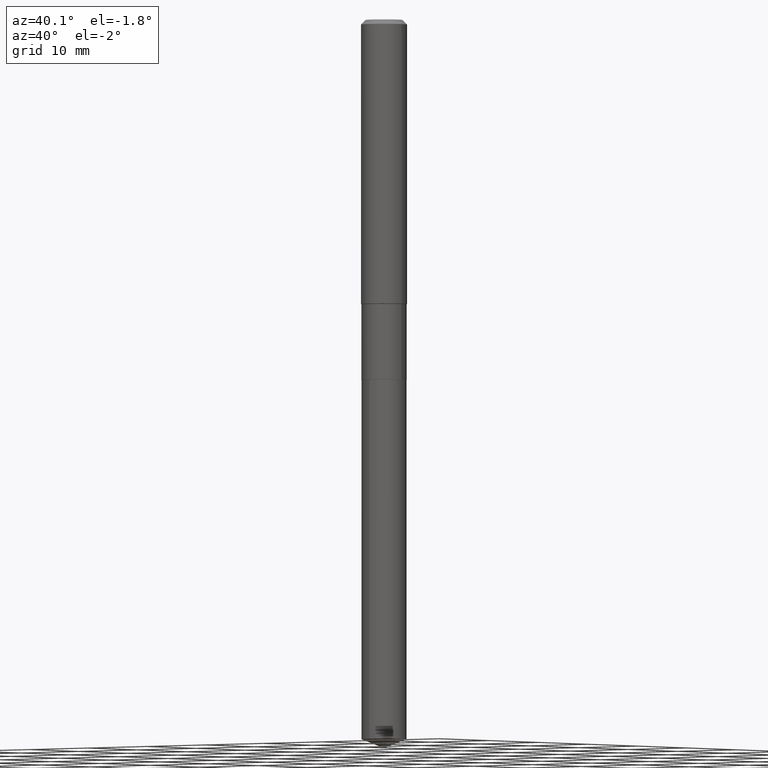
[diagram: clean part render]
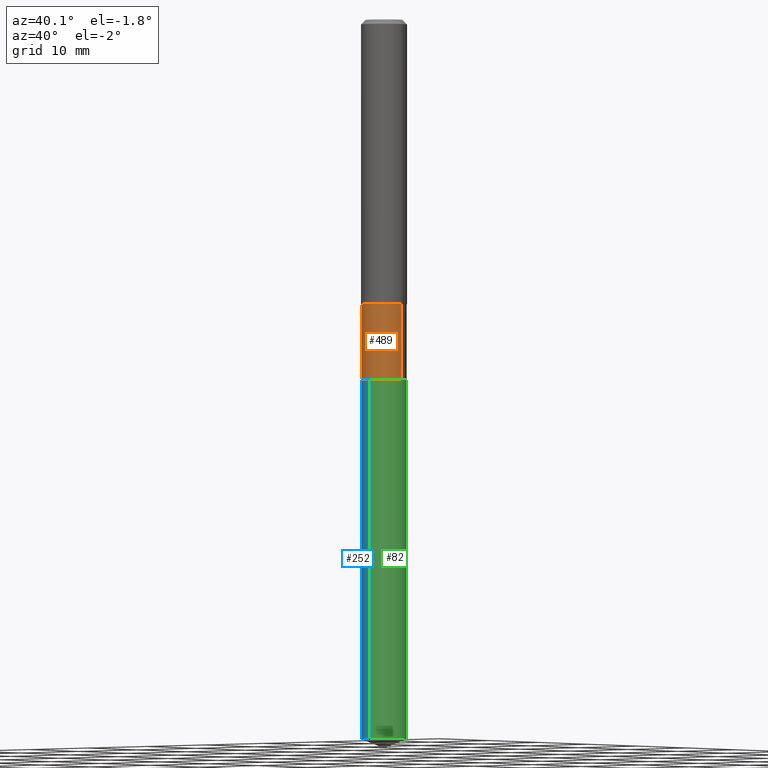
[diagram: same view with three faces highlighted in distinct colors, each labeled with its STEP entity id]
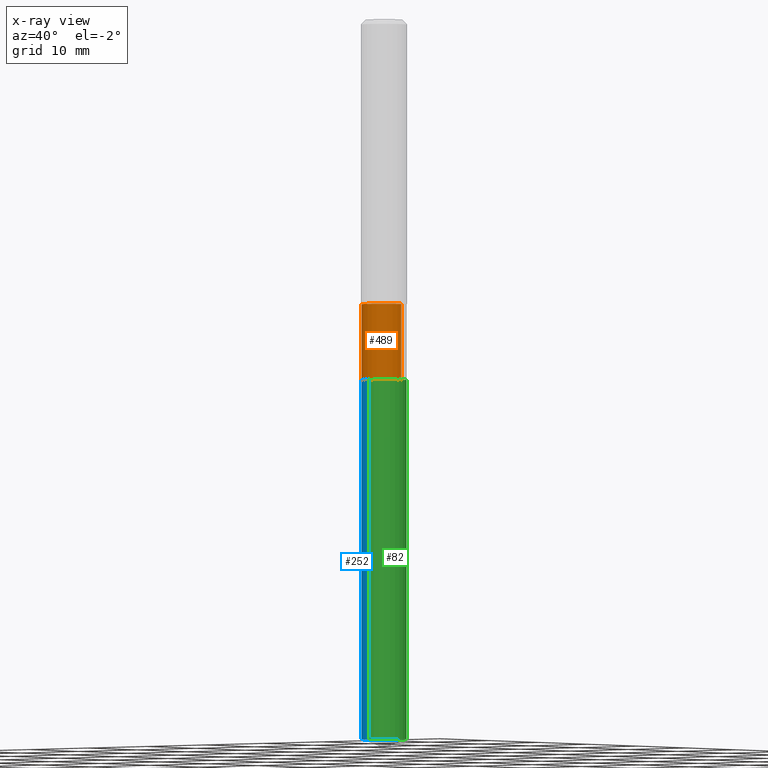
[diagram: x-ray of the same camera — body ghosted, the three highlighted faces saturated]
A machine part, auxiliary view with three faces highlighted in distinct colors.
The next image is the same camera in x-ray (body ghosted, the three faces saturated) — at least one of them is partly hidden behind the body in this view.
Their STEP definitions:

[orange] entity #489 — the highlighted cylindrical surface (edge-blend (fillet) strip) has radius 2.9502 mm, axis along (-0, 0, 1).
#7 = FACE_OUTER_BOUND ( 'NONE', #212, .T. ) ;
#25 = VERTEX_POINT ( 'NONE', #44 ) ;
#44 = CARTESIAN_POINT ( 'NONE',  ( -0.1161499999999999477, -4.955201117003356773E-15, -1.461300000000000043 ) ) ;
#59 = VERTEX_POINT ( 'NONE', #160 ) ;
#78 = CIRCLE ( 'NONE', #371, 0.1161499999999999477 ) ;
#86 = CARTESIAN_POINT ( 'NONE',  ( -0.1161499999999999755, 8.252953875853561917E-16, -5.713343107331072131E-30 ) ) ;
#97 = ORIENTED_EDGE ( 'NONE', *, *, #350, .T. ) ;
#102 = AXIS2_PLACEMENT_3D ( 'NONE', #134, #419, #127 ) ;
#108 = ORIENTED_EDGE ( 'NONE', *, *, #145, .F. ) ;
#127 = DIRECTION ( 'NONE',  ( 1.000000000000000000, -6.982962677686265922E-15, 0.000000000000000000 ) ) ;
#134 = CARTESIAN_POINT ( 'NONE',  ( 4.523872744561885153E-29, -6.458891328725936072E-15, -1.849900000000000322 ) ) ;
#135 = LINE ( 'NONE', #86, #206 ) ;
#136 = DIRECTION ( 'NONE',  ( -2.445468806185136597E-29, 3.491481338843145583E-15, 1.000000000000000000 ) ) ;
#145 = EDGE_CURVE ( 'NONE', #366, #25, #135, .T. ) ;
#160 = CARTESIAN_POINT ( 'NONE',  ( 0.1161499999999999477, -5.913172795464748024E-15, -1.461300000000000043 ) ) ;
#171 = LINE ( 'NONE', #400, #358 ) ;
#187 = VERTEX_POINT ( 'NONE', #411 ) ;
#206 = VECTOR ( 'NONE', #233, 39.37007874015748143 ) ;
#208 = CARTESIAN_POINT ( 'NONE',  ( 3.573563566478340670E-29, -5.102101680451488278E-15, -1.461300000000000043 ) ) ;
#212 = EDGE_LOOP ( 'NONE', ( #108, #237, #97, #322 ) ) ;
#233 = DIRECTION ( 'NONE',  ( -2.445468806185136877E-29, 3.491481338843145188E-15, 1.000000000000000000 ) ) ;
#237 = ORIENTED_EDGE ( 'NONE', *, *, #446, .T. ) ;
#240 = DIRECTION ( 'NONE',  ( 1.000000000000000000, -6.982962677686269866E-15, 0.000000000000000000 ) ) ;
#307 = CIRCLE ( 'NONE', #102, 0.1161500000000000032 ) ;
#322 = ORIENTED_EDGE ( 'NONE', *, *, #341, .F. ) ;
#341 = EDGE_CURVE ( 'NONE', #25, #59, #78, .T. ) ;
#350 = EDGE_CURVE ( 'NONE', #187, #59, #171, .T. ) ;
#351 = DIRECTION ( 'NONE',  ( -2.445468806185136877E-29, 3.491481338843145188E-15, 1.000000000000000000 ) ) ;
#355 = DIRECTION ( 'NONE',  ( 1.000000000000000000, -6.982962677686266711E-15, 4.876176775795935232E-29 ) ) ;
#358 = VECTOR ( 'NONE', #351, 39.37007874015748143 ) ;
#363 = CARTESIAN_POINT ( 'NONE',  ( -0.1161500000000000032, -4.955201117003356773E-15, -1.849900000000000322 ) ) ;
#366 = VERTEX_POINT ( 'NONE', #363 ) ;
#371 = AXIS2_PLACEMENT_3D ( 'NONE', #208, #136, #240 ) ;
#394 = CARTESIAN_POINT ( 'NONE',  ( 0.000000000000000000, 0.000000000000000000, 0.000000000000000000 ) ) ;
#396 = DIRECTION ( 'NONE',  ( -2.445468806185136597E-29, 3.491481338843145583E-15, 1.000000000000000000 ) ) ;
#400 = CARTESIAN_POINT ( 'NONE',  ( 0.1161499999999999755, -8.110711150132597459E-16, 5.663679325086977697E-30 ) ) ;
#411 = CARTESIAN_POINT ( 'NONE',  ( 0.1161500000000000032, -7.269962443739196607E-15, -1.849900000000000322 ) ) ;
#419 = DIRECTION ( 'NONE',  ( -2.445468806185136597E-29, 3.491481338843145583E-15, 1.000000000000000000 ) ) ;
#423 = AXIS2_PLACEMENT_3D ( 'NONE', #394, #396, #355 ) ;
#446 = EDGE_CURVE ( 'NONE', #366, #187, #307, .T. ) ;
#463 = CYLINDRICAL_SURFACE ( 'NONE', #423, 0.1161499999999999755 ) ;
#489 = ADVANCED_FACE ( 'NONE', ( #7 ), #463, .T. ) ;

[blue] entity #252 — the highlighted cylindrical surface (edge-blend (fillet) strip) has radius 2.9502 mm, axis along (-0, 0, 1).
#19 = VECTOR ( 'NONE', #109, 39.37007874015748143 ) ;
#27 = VERTEX_POINT ( 'NONE', #165 ) ;
#55 = EDGE_CURVE ( 'NONE', #177, #317, #138, .T. ) ;
#63 = ORIENTED_EDGE ( 'NONE', *, *, #430, .T. ) ;
#75 = FACE_OUTER_BOUND ( 'NONE', #401, .T. ) ;
#100 = CARTESIAN_POINT ( 'NONE',  ( 8.252953875854015512E-16, 0.1161499999999935501, -1.850400000000000489 ) ) ;
#109 = DIRECTION ( 'NONE',  ( -2.445480539169630025E-29, 3.491464536541551464E-15, 1.000000000000000000 ) ) ;
#132 = AXIS2_PLACEMENT_3D ( 'NONE', #293, #340, #156 ) ;
#138 = LINE ( 'NONE', #407, #19 ) ;
#156 = DIRECTION ( 'NONE',  ( -6.982962677686265922E-15, -1.000000000000000000, 2.351999994545211393E-15 ) ) ;
#165 = CARTESIAN_POINT ( 'NONE',  ( 8.252953875854468121E-16, 0.1161499999999935362, -1.850400000000000489 ) ) ;
#166 = CARTESIAN_POINT ( 'NONE',  ( 9.034677260161599698E-29, -1.289906281496606921E-14, -3.694447298257325318 ) ) ;
#177 = VERTEX_POINT ( 'NONE', #194 ) ;
#194 = CARTESIAN_POINT ( 'NONE',  ( -8.110711150131693227E-16, -0.1161500000000128818, -3.694447298257324874 ) ) ;
#200 = DIRECTION ( 'NONE',  ( -2.445480539169630025E-29, 3.491464536541551464E-15, 1.000000000000000000 ) ) ;
#252 = ADVANCED_FACE ( 'NONE', ( #75 ), #262, .T. ) ;
#254 = DIRECTION ( 'NONE',  ( -2.445480539169629745E-29, 3.491464536541551464E-15, 1.000000000000000000 ) ) ;
#262 = CYLINDRICAL_SURFACE ( 'NONE', #132, 0.1161500000000000032 ) ;
#270 = CARTESIAN_POINT ( 'NONE',  ( 8.252953875854466149E-16, 0.1161499999999871108, -3.694447298257326207 ) ) ;
#293 = CARTESIAN_POINT ( 'NONE',  ( 4.525095478964977394E-29, -6.460637069395357576E-15, -1.850400000000000267 ) ) ;
#299 = CARTESIAN_POINT ( 'NONE',  ( -8.110711150132145836E-16, -0.1161500000000064564, -1.850400000000000045 ) ) ;
#308 = EDGE_CURVE ( 'NONE', #27, #317, #406, .T. ) ;
#309 = DIRECTION ( 'NONE',  ( -2.445480539169629745E-29, 3.491464536541551464E-15, 1.000000000000000000 ) ) ;
#316 = AXIS2_PLACEMENT_3D ( 'NONE', #333, #254, #481 ) ;
#317 = VERTEX_POINT ( 'NONE', #299 ) ;
#328 = ORIENTED_EDGE ( 'NONE', *, *, #372, .F. ) ;
#333 = CARTESIAN_POINT ( 'NONE',  ( 4.525095478964977394E-29, -6.460637069395357576E-15, -1.850400000000000267 ) ) ;
#340 = DIRECTION ( 'NONE',  ( -2.445480539169629745E-29, 3.491464536541551464E-15, 1.000000000000000000 ) ) ;
#367 = ORIENTED_EDGE ( 'NONE', *, *, #308, .F. ) ;
#372 = EDGE_CURVE ( 'NONE', #380, #27, #422, .T. ) ;
#380 = VERTEX_POINT ( 'NONE', #270 ) ;
#401 = EDGE_LOOP ( 'NONE', ( #328, #63, #440, #367 ) ) ;
#406 = CIRCLE ( 'NONE', #316, 0.1161500000000000032 ) ;
#407 = CARTESIAN_POINT ( 'NONE',  ( -8.110711150132145836E-16, -0.1161500000000064564, -1.850400000000000045 ) ) ;
#414 = VECTOR ( 'NONE', #200, 39.37007874015748143 ) ;
#422 = LINE ( 'NONE', #100, #414 ) ;
#430 = EDGE_CURVE ( 'NONE', #380, #177, #458, .T. ) ;
#440 = ORIENTED_EDGE ( 'NONE', *, *, #55, .T. ) ;
#443 = AXIS2_PLACEMENT_3D ( 'NONE', #166, #309, #461 ) ;
#458 = CIRCLE ( 'NONE', #443, 0.1161500000000000032 ) ;
#461 = DIRECTION ( 'NONE',  ( -6.982962677686265922E-15, -1.000000000000000000, 4.703999989090422785E-15 ) ) ;
#481 = DIRECTION ( 'NONE',  ( -6.982962677686265922E-15, -1.000000000000000000, 2.351999994545211393E-15 ) ) ;

[green] entity #82 — the highlighted cylindrical surface (edge-blend (fillet) strip) has radius 2.9502 mm, axis along (-0, 0, 1).
#4 = DIRECTION ( 'NONE',  ( -2.445480539169629745E-29, 3.491464536541551464E-15, 1.000000000000000000 ) ) ;
#19 = VECTOR ( 'NONE', #109, 39.37007874015748143 ) ;
#27 = VERTEX_POINT ( 'NONE', #165 ) ;
#35 = EDGE_LOOP ( 'NONE', ( #260, #53, #445, #183 ) ) ;
#38 = DIRECTION ( 'NONE',  ( -6.982962677686265922E-15, -1.000000000000000000, 4.703999989090422785E-15 ) ) ;
#47 = AXIS2_PLACEMENT_3D ( 'NONE', #343, #130, #91 ) ;
#53 = ORIENTED_EDGE ( 'NONE', *, *, #372, .T. ) ;
#55 = EDGE_CURVE ( 'NONE', #177, #317, #138, .T. ) ;
#82 = ADVANCED_FACE ( 'NONE', ( #163 ), #310, .T. ) ;
#91 = DIRECTION ( 'NONE',  ( -6.982962677686265922E-15, -1.000000000000000000, 2.351999994545211393E-15 ) ) ;
#100 = CARTESIAN_POINT ( 'NONE',  ( 8.252953875854015512E-16, 0.1161499999999935501, -1.850400000000000489 ) ) ;
#109 = DIRECTION ( 'NONE',  ( -2.445480539169630025E-29, 3.491464536541551464E-15, 1.000000000000000000 ) ) ;
#118 = CARTESIAN_POINT ( 'NONE',  ( 4.525095478964977394E-29, -6.460637069395357576E-15, -1.850400000000000267 ) ) ;
#125 = DIRECTION ( 'NONE',  ( -2.445480539169629745E-29, 3.491464536541551464E-15, 1.000000000000000000 ) ) ;
#130 = DIRECTION ( 'NONE',  ( -2.445480539169629745E-29, 3.491464536541551464E-15, 1.000000000000000000 ) ) ;
#138 = LINE ( 'NONE', #407, #19 ) ;
#153 = CIRCLE ( 'NONE', #219, 0.1161500000000000032 ) ;
#163 = FACE_OUTER_BOUND ( 'NONE', #35, .T. ) ;
#165 = CARTESIAN_POINT ( 'NONE',  ( 8.252953875854468121E-16, 0.1161499999999935362, -1.850400000000000489 ) ) ;
#177 = VERTEX_POINT ( 'NONE', #194 ) ;
#183 = ORIENTED_EDGE ( 'NONE', *, *, #55, .F. ) ;
#192 = DIRECTION ( 'NONE',  ( -6.982962677686265922E-15, -1.000000000000000000, 2.351999994545211393E-15 ) ) ;
#194 = CARTESIAN_POINT ( 'NONE',  ( -8.110711150131693227E-16, -0.1161500000000128818, -3.694447298257324874 ) ) ;
#200 = DIRECTION ( 'NONE',  ( -2.445480539169630025E-29, 3.491464536541551464E-15, 1.000000000000000000 ) ) ;
#216 = CIRCLE ( 'NONE', #345, 0.1161500000000000032 ) ;
#219 = AXIS2_PLACEMENT_3D ( 'NONE', #452, #4, #38 ) ;
#229 = EDGE_CURVE ( 'NONE', #177, #380, #153, .T. ) ;
#239 = EDGE_CURVE ( 'NONE', #317, #27, #216, .T. ) ;
#260 = ORIENTED_EDGE ( 'NONE', *, *, #229, .T. ) ;
#270 = CARTESIAN_POINT ( 'NONE',  ( 8.252953875854466149E-16, 0.1161499999999871108, -3.694447298257326207 ) ) ;
#299 = CARTESIAN_POINT ( 'NONE',  ( -8.110711150132145836E-16, -0.1161500000000064564, -1.850400000000000045 ) ) ;
#310 = CYLINDRICAL_SURFACE ( 'NONE', #47, 0.1161500000000000032 ) ;
#317 = VERTEX_POINT ( 'NONE', #299 ) ;
#343 = CARTESIAN_POINT ( 'NONE',  ( 4.525095478964977394E-29, -6.460637069395357576E-15, -1.850400000000000267 ) ) ;
#345 = AXIS2_PLACEMENT_3D ( 'NONE', #118, #125, #192 ) ;
#372 = EDGE_CURVE ( 'NONE', #380, #27, #422, .T. ) ;
#380 = VERTEX_POINT ( 'NONE', #270 ) ;
#407 = CARTESIAN_POINT ( 'NONE',  ( -8.110711150132145836E-16, -0.1161500000000064564, -1.850400000000000045 ) ) ;
#414 = VECTOR ( 'NONE', #200, 39.37007874015748143 ) ;
#422 = LINE ( 'NONE', #100, #414 ) ;
#445 = ORIENTED_EDGE ( 'NONE', *, *, #239, .F. ) ;
#452 = CARTESIAN_POINT ( 'NONE',  ( 9.034677260161599698E-29, -1.289906281496606921E-14, -3.694447298257325318 ) ) ;